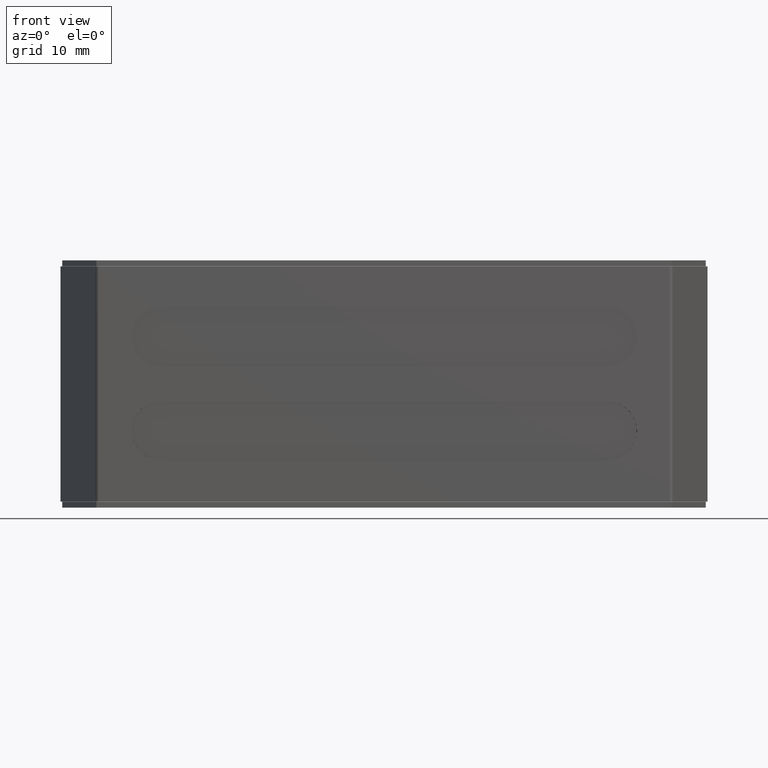
[diagram: clean part render]
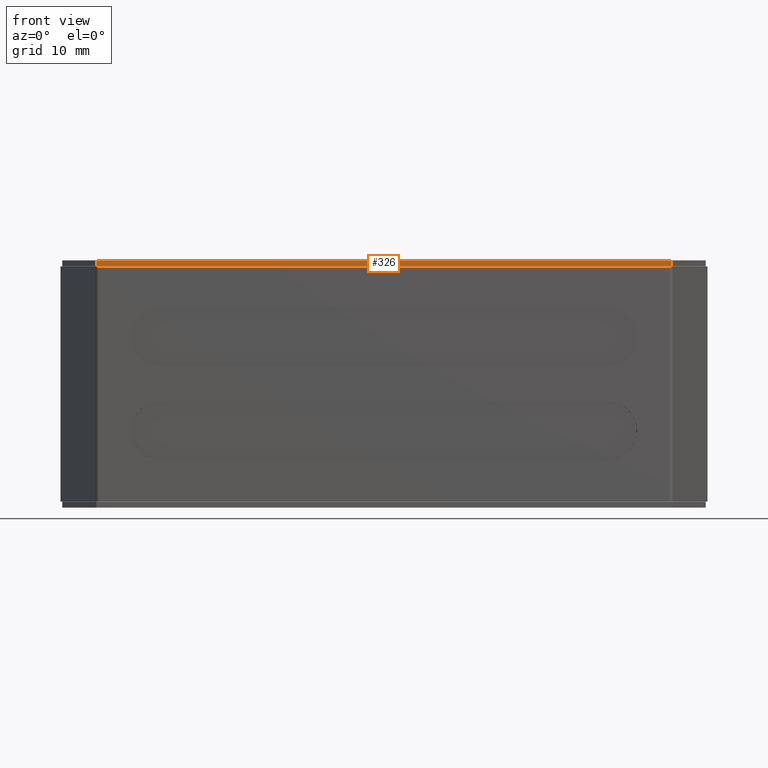
[diagram: same view with one face highlighted and labeled with its STEP entity id]
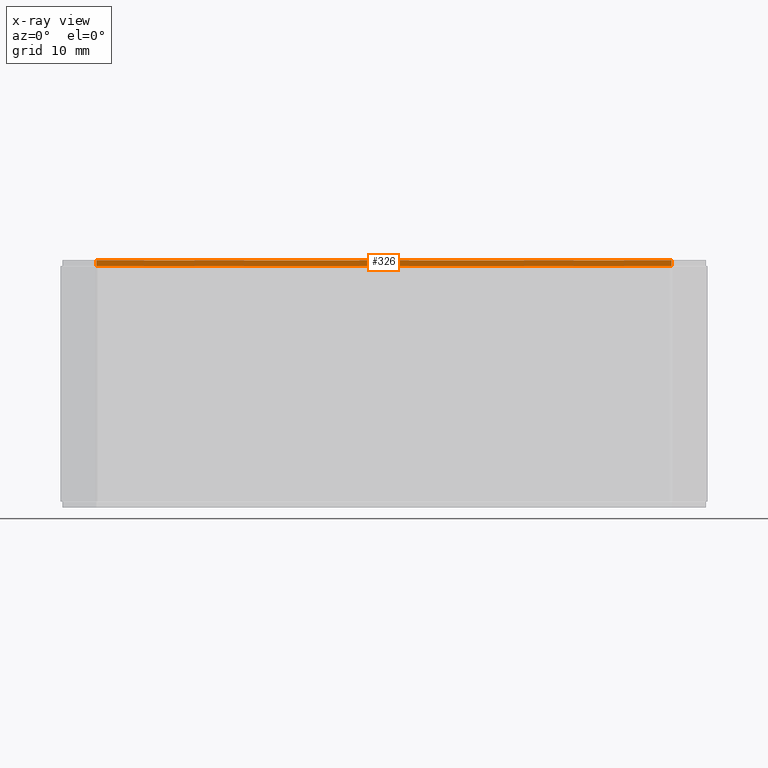
[diagram: x-ray of the same camera — body ghosted, the highlighted face saturated]
A machine part, front view. The second image highlights one B-rep face of the part: STEP entity #326.
The next image is the same camera in x-ray: the body ghosted, the highlighted face saturated — about 0% of this face is hidden behind the body in this view.
In plain terms, the highlighted planar face has unit normal (0, -1, 0).
Its self-contained STEP definition (entity closure, byte-faithful):
#1 = EDGE_CURVE ( 'NONE', #249, #3, #2084, .T. ) ;
#2 = ORIENTED_EDGE ( 'NONE', *, *, #1, .F. ) ;
#3 = VERTEX_POINT ( 'NONE', #2080 ) ;
#4 = VERTEX_POINT ( 'NONE', #2079 ) ;
#5 = EDGE_CURVE ( 'NONE', #3, #4, #2078, .T. ) ;
#249 = VERTEX_POINT ( 'NONE', #2905 ) ;
#250 = ORIENTED_EDGE ( 'NONE', *, *, #330, .T. ) ;
#324 = EDGE_LOOP ( 'NONE', ( #325, #2, #250, #332 ) ) ;
#325 = ORIENTED_EDGE ( 'NONE', *, *, #5, .F. ) ;
#326 = ADVANCED_FACE ( 'NONE', ( #3109 ), #3026, .T. ) ;
#330 = EDGE_CURVE ( 'NONE', #249, #331, #3122, .T. ) ;
#331 = VERTEX_POINT ( 'NONE', #3117 ) ;
#332 = ORIENTED_EDGE ( 'NONE', *, *, #333, .T. ) ;
#333 = EDGE_CURVE ( 'NONE', #331, #4, #3118, .T. ) ;
#2075 = DIRECTION ( 'NONE',  ( 1.000000000000000000, 1.418780067679338100E-016, -0.0000000000000000000 ) ) ;
#2076 = VECTOR ( 'NONE', #2075, 1000.000000000000000 ) ;
#2077 = CARTESIAN_POINT ( 'NONE',  ( -0.1851851851851839800, -3.572839506172905000, 0.5100000000209190500 ) ) ;
#2078 = LINE ( 'NONE', #2077, #2076 ) ;
#2079 = CARTESIAN_POINT ( 'NONE',  ( 24.26854820866281100, -3.572839506172903700, 0.5100000000209190500 ) ) ;
#2080 = CARTESIAN_POINT ( 'NONE',  ( -24.63891857903317000, -3.572839506172908600, 0.5100000000209190500 ) ) ;
#2081 = DIRECTION ( 'NONE',  ( 0.0000000000000000000, 0.0000000000000000000, 1.000000000000000000 ) ) ;
#2082 = VECTOR ( 'NONE', #2081, 1000.000000000000000 ) ;
#2083 = CARTESIAN_POINT ( 'NONE',  ( -24.63891857903317000, -3.572839506172908600, 0.01000000002091905700 ) ) ;
#2084 = LINE ( 'NONE', #2083, #2082 ) ;
#2905 = CARTESIAN_POINT ( 'NONE',  ( -24.63891857903317000, -3.572839506172908600, 0.01000000002091905700 ) ) ;
#3020 = DIRECTION ( 'NONE',  ( 1.000000000000000000, 1.418780067679338100E-016, 0.0000000000000000000 ) ) ;
#3021 = DIRECTION ( 'NONE',  ( 1.418780067679338100E-016, -1.000000000000000000, 0.0000000000000000000 ) ) ;
#3022 = CARTESIAN_POINT ( 'NONE',  ( -0.1851851851851839800, -3.572839506172905000, 0.01000000002091905700 ) ) ;
#3023 = AXIS2_PLACEMENT_3D ( 'NONE', #3022, #3021, #3020 ) ;
#3026 = PLANE ( 'NONE',  #3023 ) ;
#3109 = FACE_OUTER_BOUND ( 'NONE', #324, .T. ) ;
#3117 = CARTESIAN_POINT ( 'NONE',  ( 24.26854820866281100, -3.572839506172903700, 0.01000000002091905700 ) ) ;
#3118 = LINE ( 'NONE', #3149, #3148 ) ;
#3119 = DIRECTION ( 'NONE',  ( 1.000000000000000000, 7.093900338396690700E-017, 0.0000000000000000000 ) ) ;
#3120 = VECTOR ( 'NONE', #3119, 1000.000000000000000 ) ;
#3121 = CARTESIAN_POINT ( 'NONE',  ( -0.1851851851851839800, -3.572839506172905000, 0.01000000002091905700 ) ) ;
#3122 = LINE ( 'NONE', #3121, #3120 ) ;
#3147 = DIRECTION ( 'NONE',  ( 0.0000000000000000000, 0.0000000000000000000, 1.000000000000000000 ) ) ;
#3148 = VECTOR ( 'NONE', #3147, 1000.000000000000000 ) ;
#3149 = CARTESIAN_POINT ( 'NONE',  ( 24.26854820866281100, -3.572839506172903700, 0.01000000002091905700 ) ) ;